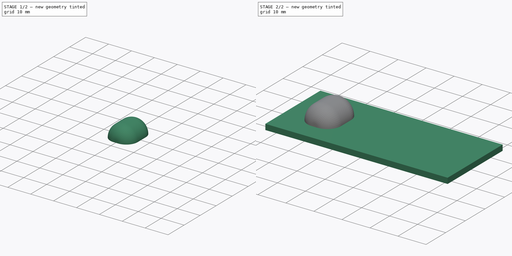
[diagram: build sequence overview — one tinted view per stage of 2, left to right]
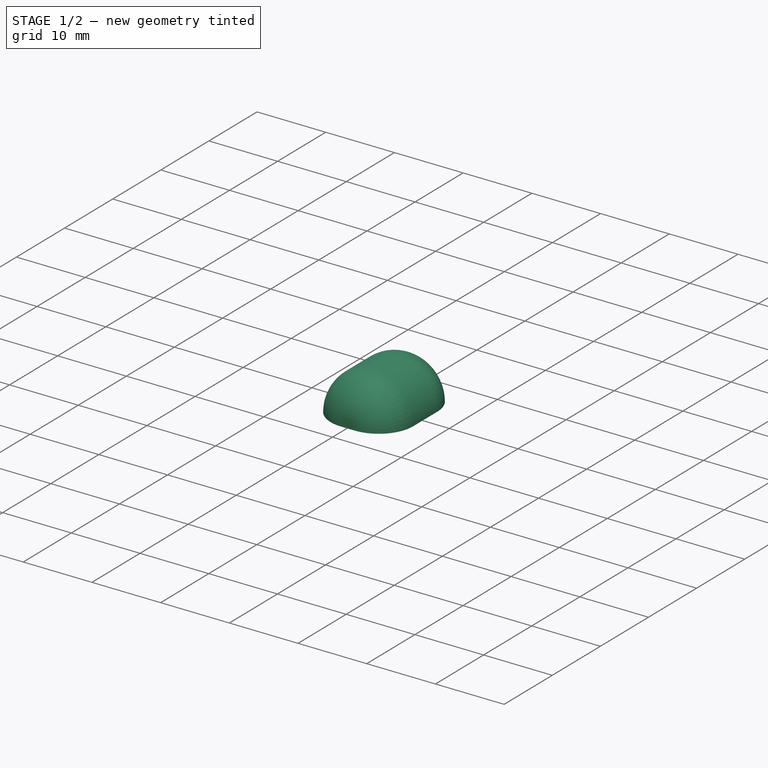
[diagram: stage 1 of 2 — iso view after this stage's code; geometry added in this stage tinted green]
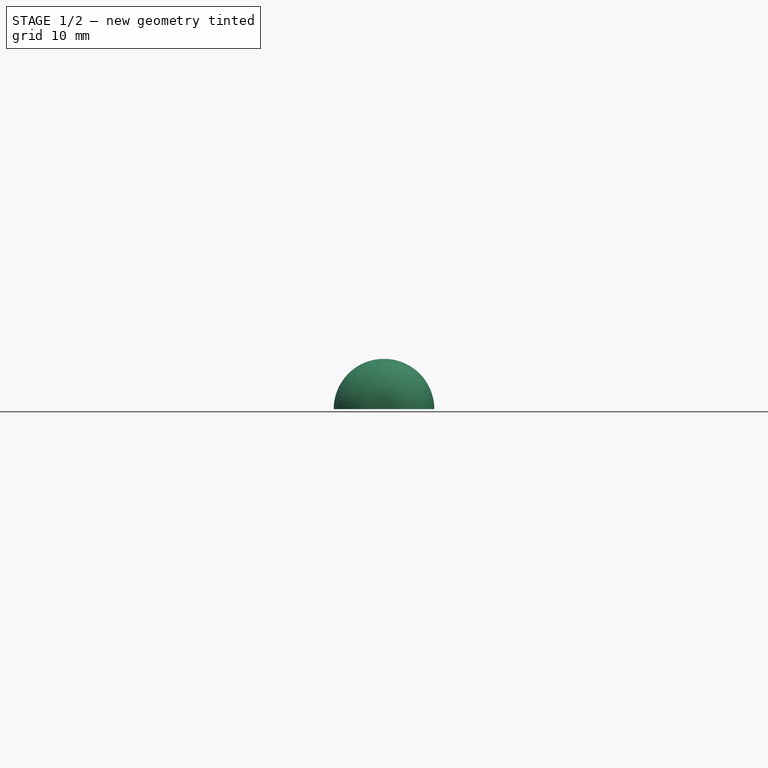
[diagram: stage 1 of 2 — front view after this stage's code; geometry added in this stage tinted green]
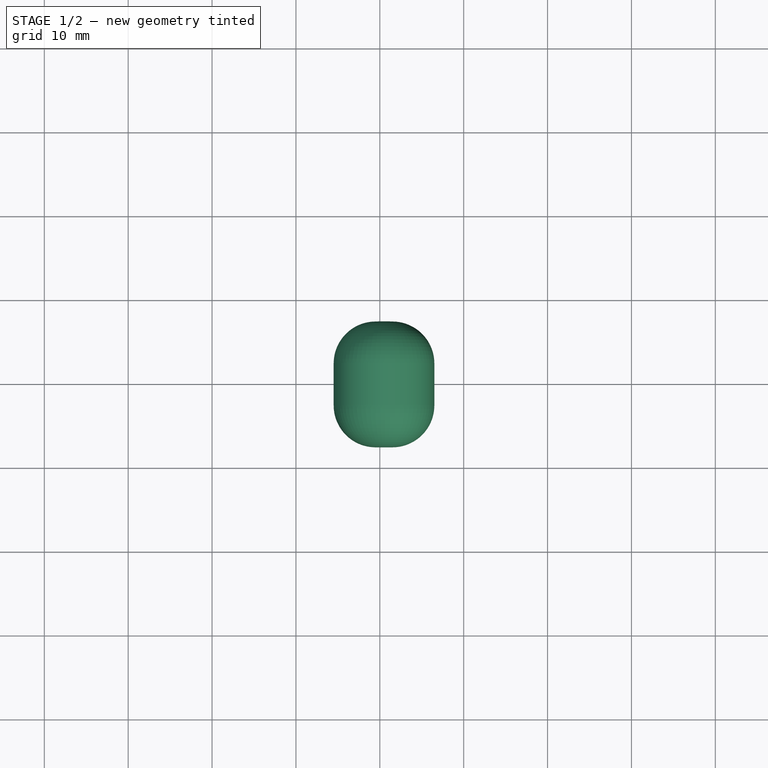
[diagram: stage 1 of 2 — top view after this stage's code; geometry added in this stage tinted green]
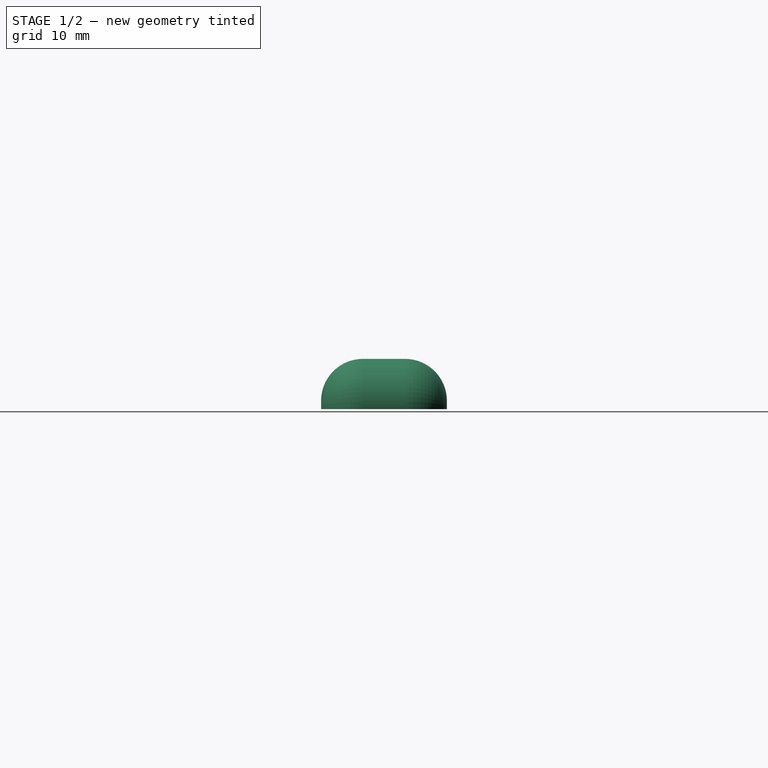
[diagram: stage 1 of 2 — right view after this stage's code; geometry added in this stage tinted green]
FCSTD DOCUMENT  (FreeCAD 0.14R3691 (Git))
Label: ButtonCover
License: CC-BY 3.0
LicenseURL: http://creativecommons.org/licenses/by/3.0/
objects: Sketcher::SketchObject×14, Part::Extrusion×1, PartDesign::Revolution×1
note: 17 computed .brp shape members not serialized (recipe doc carries the construction recipe); baked Part::Feature solids carry a one-line shape summary decoded from their .brp

FEATURE [Sketcher::SketchObject] Sketch013
  Placement = pos=(-19.5,0,2) rot=(0,0,1;0rad)
  sketch-geometry (6):
    g0: LineSegment StartX=0 StartY=7.5 StartZ=0 EndX=-2.5 EndY=7.5 EndZ=0
    g1: LineSegment StartX=-7.5 StartY=2.5 StartZ=0 EndX=-7.5 EndY=-2.5 EndZ=0
    g2: LineSegment StartX=-2.5 StartY=-7.5 StartZ=0 EndX=0 EndY=-7.5 EndZ=0
    g3: LineSegment StartX=0 StartY=7.5 StartZ=0 EndX=0 EndY=-7.5 EndZ=0
    g4: ArcOfCircle CenterX=-2.5 CenterY=2.5 CenterZ=0 NormalX=0 NormalY=0 NormalZ=1 Radius=5 StartAngle=1.5708 EndAngle=3.14159
    g5: ArcOfCircle CenterX=-2.5 CenterY=-2.5 CenterZ=0 NormalX=0 NormalY=0 NormalZ=1 Radius=5 StartAngle=3.14159 EndAngle=4.71239
  constraints (15):
    c: Horizontal(g0)
    c: Horizontal(g2)
    c: Vertical(g1)
    c: PointOnObject(g0,g-2)
    c: Symmetric(g0,g2,g-1)
    c: Coincident(g3,g0)
    c: Coincident(g3,g2)
    c: Tangent(g0,g4)
    c: Tangent(g1,g4)
    c: Tangent(g1,g5)
    c: Tangent(g2,g5)
    c: Equal(g5,g4)
    c: Radius(g5) = 5
    c: DistanceY(g3) = -15
    c: DistanceX(g-2,g1) = -7.5
FEATURE [PartDesign::Revolution] Revolution
  Angle = 180
  Axis = (0,1,0)
  Base = (-19.5,0,2)
  Placement = pos=(-19.5,0,2) rot=(0,0,1;0rad)
  ReferenceAxis = -> Sketch013 [V_Axis]
  Sketch = -> Sketch013
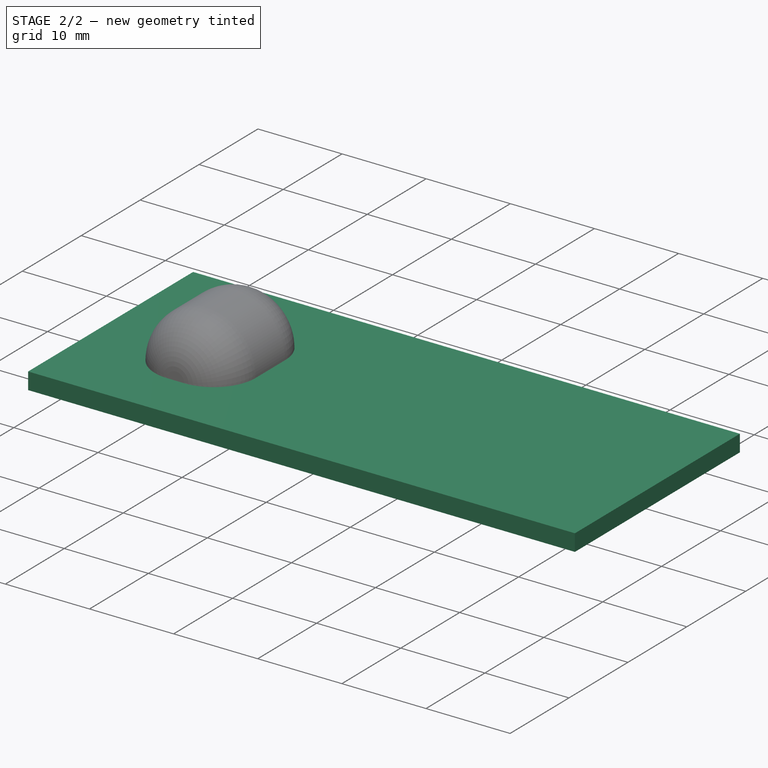
[diagram: stage 2 of 2 — iso view after this stage's code; geometry added in this stage tinted green]
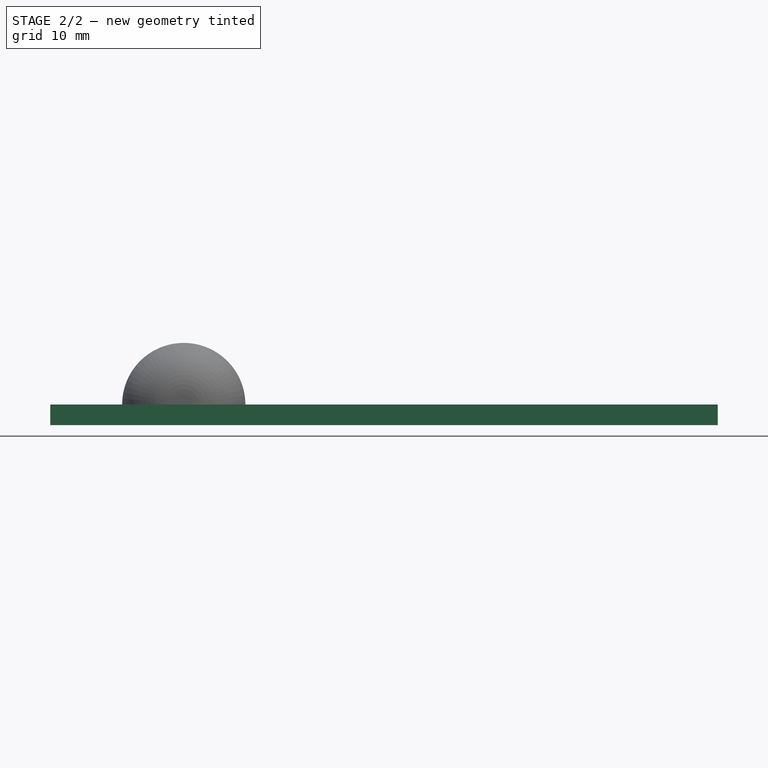
[diagram: stage 2 of 2 — front view after this stage's code; geometry added in this stage tinted green]
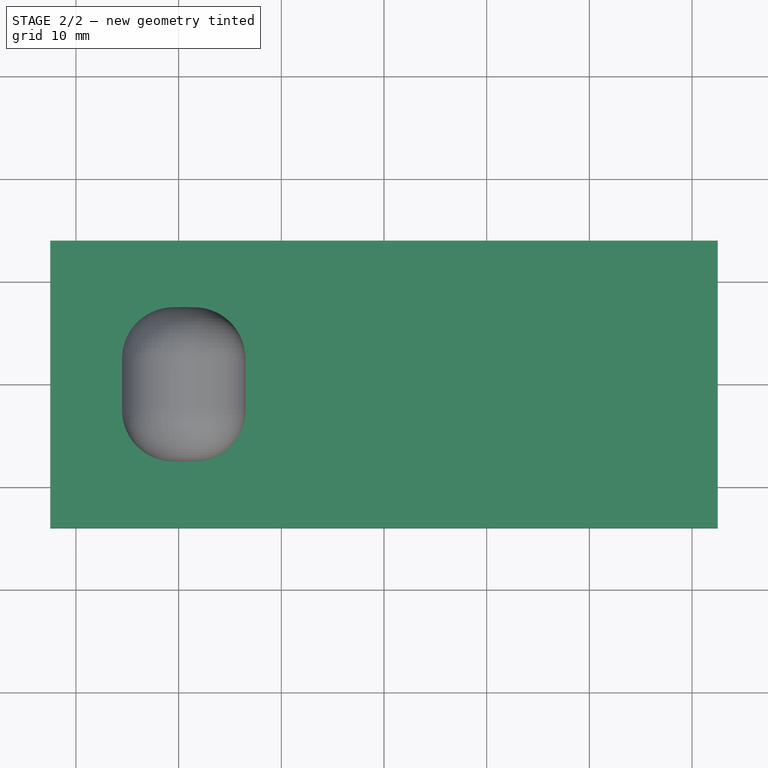
[diagram: stage 2 of 2 — top view after this stage's code; geometry added in this stage tinted green]
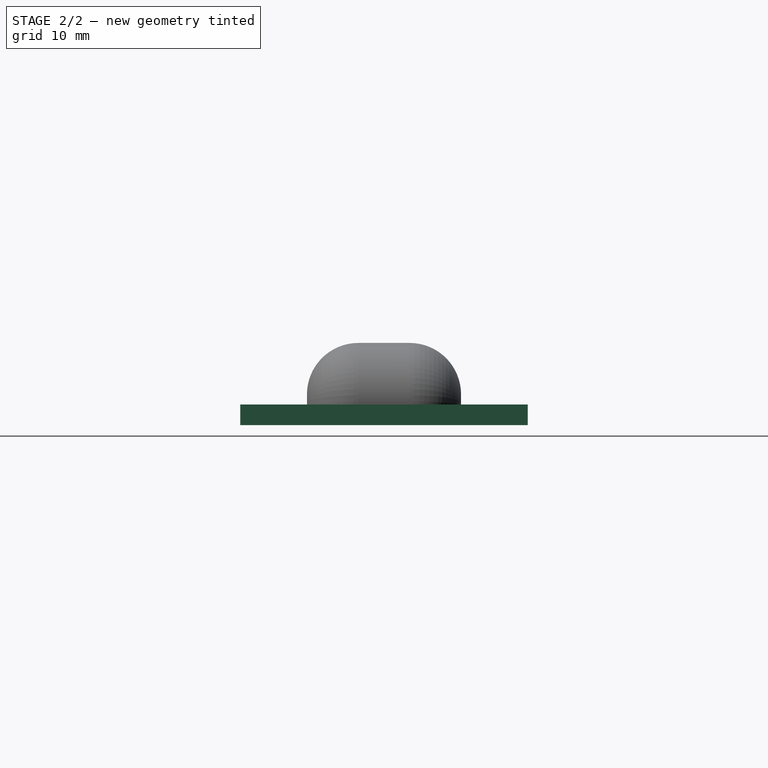
[diagram: stage 2 of 2 — right view after this stage's code; geometry added in this stage tinted green]
FEATURE [Sketcher::SketchObject] Sketch  label="Sheet"
  sketch-geometry (4):
    g0: LineSegment StartX=-32.5 StartY=14 StartZ=0 EndX=32.5 EndY=14 EndZ=0
    g1: LineSegment StartX=32.5 StartY=14 StartZ=0 EndX=32.5 EndY=-14 EndZ=0
    g2: LineSegment StartX=32.5 StartY=-14 StartZ=0 EndX=-32.5 EndY=-14 EndZ=0
    g3: LineSegment StartX=-32.5 StartY=-14 StartZ=0 EndX=-32.5 EndY=14 EndZ=0
  constraints (12):
    c: Coincident(g0,g1)
    c: Coincident(g1,g2)
    c: Coincident(g2,g3)
    c: Coincident(g3,g0)
    c: Horizontal(g0)
    c: Horizontal(g2)
    c: Vertical(g1)
    c: Vertical(g3)
    c: DistanceX(g2) = -65
    c: DistanceY(g3) = 28
    c: Symmetric(g0,g0,g-2)
    c: Symmetric(g2,g0,g-1)
FEATURE [Sketcher::SketchObject] Sketch001  label="Momentary Inner"
  sketch-geometry (1):
    g0: Circle CenterX=-19.5 CenterY=0 CenterZ=0 NormalX=0 NormalY=0 NormalZ=1 Radius=5
  constraints (2):
    c: Radius(g0) = 5
    c: Distance(g-1,g0) = 19.5
FEATURE [Sketcher::SketchObject] Sketch002  label="ResetInner"
  sketch-geometry (1):
    g0: Circle CenterX=0 CenterY=0 CenterZ=0 NormalX=0 NormalY=0 NormalZ=1 Radius=5
  constraints (2):
    c: Radius(g0) = 5
    c: Coincident(g0,g-1)
FEATURE [Sketcher::SketchObject] Sketch003  label="Momentary outer"
  sketch-geometry (4):
    g0: LineSegment StartX=-29 StartY=9.5 StartZ=0 EndX=-10 EndY=9.5 EndZ=0
    g1: LineSegment StartX=-10 StartY=9.5 StartZ=0 EndX=-10 EndY=-9.5 EndZ=0
    g2: LineSegment StartX=-10 StartY=-9.5 StartZ=0 EndX=-29 EndY=-9.5 EndZ=0
    g3: LineSegment StartX=-29 StartY=-9.5 StartZ=0 EndX=-29 EndY=9.5 EndZ=0
  constraints (12):
    c: Coincident(g0,g1)
    c: Coincident(g1,g2)
    c: Coincident(g2,g3)
    c: Coincident(g3,g0)
    c: Horizontal(g0)
    c: Horizontal(g2)
    c: Vertical(g1)
    c: Vertical(g3)
    c: Equal(g2,g1)
    c: DistanceX(g2) = -19
    c: Symmetric(g0,g2,g-1)
    c: DistanceX(g-2,g0) = -10
FEATURE [Sketcher::SketchObject] Sketch004  label="ResetOuter"
  sketch-geometry (1):
    g0: Circle CenterX=0 CenterY=0 CenterZ=0 NormalX=0 NormalY=0 NormalZ=1 Radius=7
  constraints (2):
    c: Radius(g0) = 7
    c: Coincident(g0,g-1)
FEATURE [Sketcher::SketchObject] Sketch005  label="Pwr Inner"
  sketch-geometry (4):
    g0: LineSegment StartX=12 StartY=7.5 StartZ=0 EndX=27 EndY=7.5 EndZ=0
    g1: LineSegment StartX=27 StartY=7.5 StartZ=0 EndX=27 EndY=-7.5 EndZ=0
    g2: LineSegment StartX=27 StartY=-7.5 StartZ=0 EndX=12 EndY=-7.5 EndZ=0
    g3: LineSegment StartX=12 StartY=-7.5 StartZ=0 EndX=12 EndY=7.5 EndZ=0
  constraints (12):
    c: Coincident(g0,g1)
    c: Coincident(g1,g2)
    c: Coincident(g2,g3)
    c: Coincident(g3,g0)
    c: Horizontal(g0)
    c: Horizontal(g2)
    c: Vertical(g1)
    c: Vertical(g3)
    c: Equal(g2,g1)
    c: DistanceX(g2) = -15
    c: Symmetric(g0,g2,g-1)
    c: DistanceX(g-2,g0) = 12
FEATURE [Sketcher::SketchObject] Sketch006  label="Pwr outer"
  sketch-geometry (4):
    g0: LineSegment StartX=10 StartY=9.5 StartZ=0 EndX=29 EndY=9.5 EndZ=0
    g1: LineSegment StartX=29 StartY=9.5 StartZ=0 EndX=29 EndY=-9.5 EndZ=0
    g2: LineSegment StartX=29 StartY=-9.5 StartZ=0 EndX=10 EndY=-9.5 EndZ=0
    g3: LineSegment StartX=10 StartY=-9.5 StartZ=0 EndX=10 EndY=9.5 EndZ=0
  constraints (12):
    c: Coincident(g0,g1)
    c: Coincident(g1,g2)
    c: Coincident(g2,g3)
    c: Coincident(g3,g0)
    c: Horizontal(g0)
    c: Horizontal(g2)
    c: Vertical(g1)
    c: Vertical(g3)
    c: Equal(g2,g1)
    c: DistanceX(g2) = -19
    c: Symmetric(g0,g2,g-1)
    c: DistanceX(g-2,g0) = 10
FEATURE [Sketcher::SketchObject] Sketch007  label="Pwr Shaft"
  sketch-geometry (1):
    g0: Circle CenterX=20 CenterY=0 CenterZ=0 NormalX=0 NormalY=0 NormalZ=1 Radius=1
  constraints (3):
    c: PointOnObject(g0,g-1)
    c: Radius(g0) = 1
    c: DistanceX(g-2,g0) = 20
FEATURE [Sketcher::SketchObject] Sketch008  label="Pwr Shaft Outter"
  sketch-geometry (1):
    g0: Circle CenterX=20 CenterY=0 CenterZ=0 NormalX=0 NormalY=0 NormalZ=1 Radius=3
  constraints (3):
    c: Radius(g0) = 3
    c: PointOnObject(g0,g-1)
    c: Distance(g-1,g0) = 20
FEATURE [Sketcher::SketchObject] Sketch009  label="Momentary Shaft"
  sketch-geometry (1):
    g0: Circle CenterX=-19.5 CenterY=0 CenterZ=0 NormalX=0 NormalY=0 NormalZ=1 Radius=1
  constraints (3):
    c: PointOnObject(g0,g-1)
    c: Radius(g0) = 1
    c: DistanceX(g-2,g0) = -19.5
FEATURE [Sketcher::SketchObject] Sketch010  label="Momentary Shaft outer"
  sketch-geometry (1):
    g0: Circle CenterX=-19.5 CenterY=0 CenterZ=0 NormalX=0 NormalY=0 NormalZ=1 Radius=3
  constraints (3):
    c: Radius(g0) = 3
    c: PointOnObject(g0,g-1)
    c: DistanceX(g-2,g0) = -19.5
FEATURE [Sketcher::SketchObject] Sketch011  label="Reset Shaft"
  sketch-geometry (1):
    g0: Circle CenterX=0 CenterY=0 CenterZ=0 NormalX=0 NormalY=0 NormalZ=1 Radius=1
  constraints (2):
    c: Radius(g0) = 1
    c: Coincident(g0,g-1)
FEATURE [Sketcher::SketchObject] Sketch012  label="Reset shaft outer"
  sketch-geometry (1):
    g0: Circle CenterX=0 CenterY=0 CenterZ=0 NormalX=0 NormalY=0 NormalZ=1 Radius=3
  constraints (2):
    c: Radius(g0) = 3
    c: Coincident(g0,g-1)
FEATURE [Part::Extrusion] Extrude006  label="Sheet001"
  Base = -> Sketch
  Dir = (0,0,2)
  Solid = true
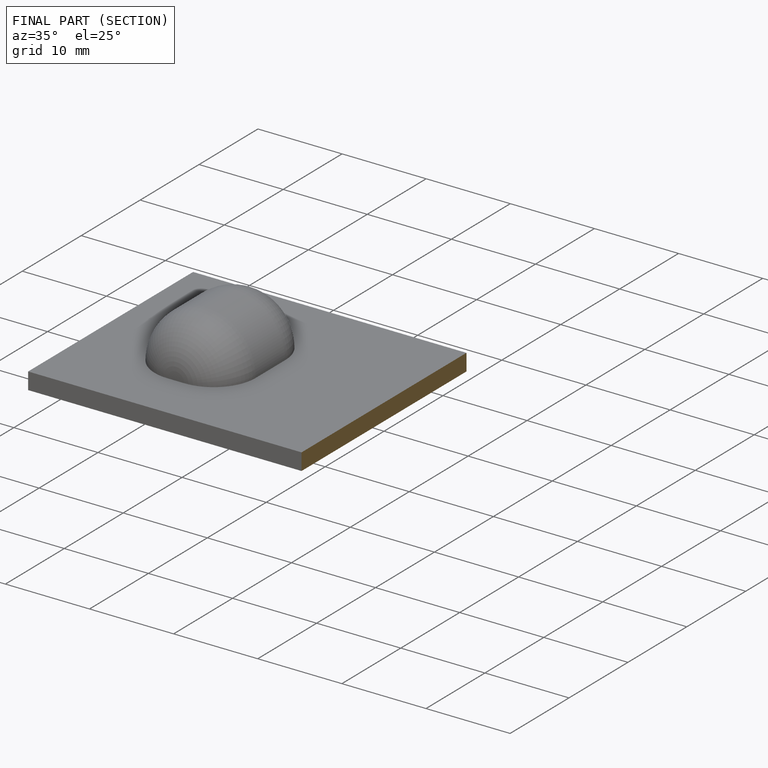
[diagram: finished part — half-section view (interior)]
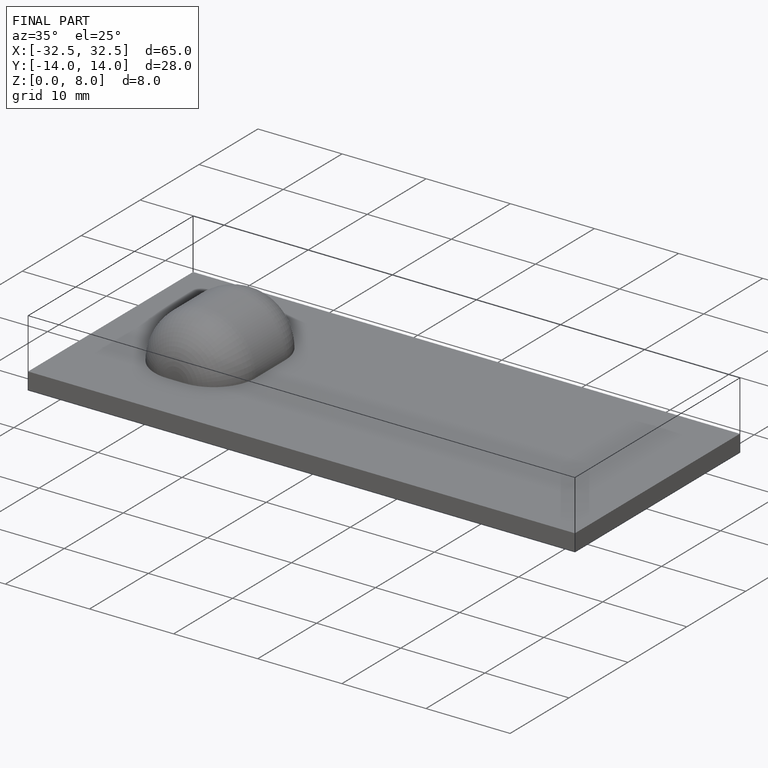
[diagram: finished part — iso view with bounding-box wireframe]
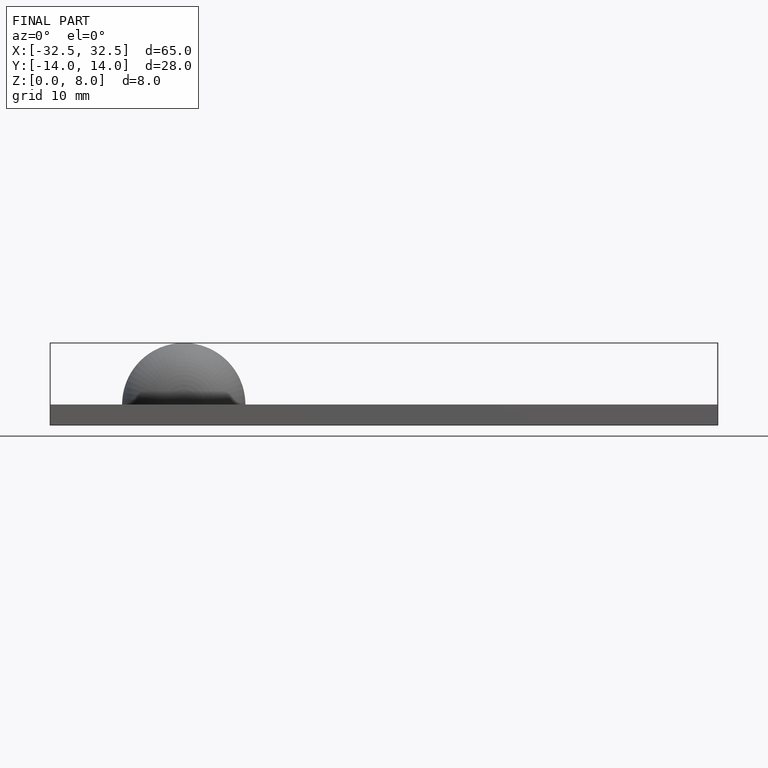
[diagram: finished part — front view with bounding-box wireframe]
